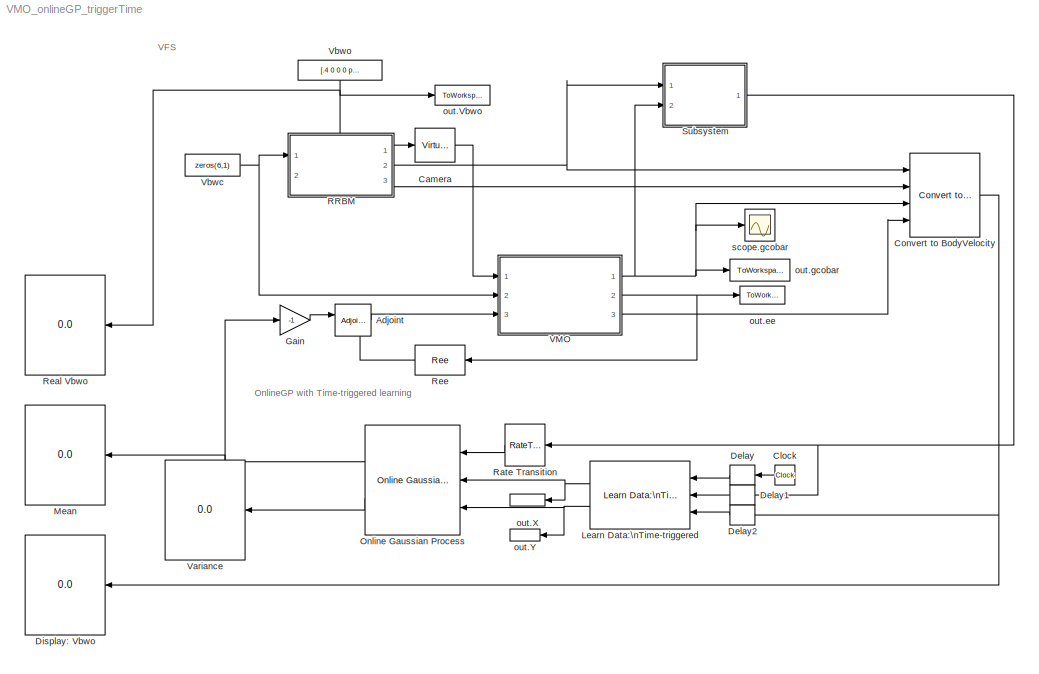
MODEL VMO_onlineGP_triggerTime
KIND model
BLOCK [Reference] Adjoint  REF=simlib_vpc_basic/Adjoint
  NameLocation = top
  Ports = [2, 1]
  RTWMemSecDataConstants = Inherit from model
  RTWMemSecDataInternal = Inherit from model
  RTWMemSecDataParameters = Inherit from model
  RTWMemSecFuncExecute = Inherit from model
  RTWMemSecFuncInitTerm = Inherit from model
  SID = 60
  SourceBlock = simlib_vpc_basic/Adjoint
  SourceProductName = VPC Library
  SourceType = Adjoint Matrix [V1]
  adjointtype = orientation
BLOCK [Reference] Camera  REF=simlib_vpc_basic/Virtual Camera
  NameLocation = top
  Ports = [1, 1]
  RTWMemSecDataConstants = Inherit from model
  RTWMemSecDataInternal = Inherit from model
  RTWMemSecDataParameters = Inherit from model
  RTWMemSecFuncExecute = Inherit from model
  RTWMemSecFuncInitTerm = Inherit from model
  SID = 44
  SourceBlock = simlib_vpc_basic/Virtual Camera
  SourceProductName = VPC Library
  SourceType = Virtual Camera model [V1]
  camtype = Pinhole
  lambda = lambda
  po = po
BLOCK [Clock] Clock
  NameLocation = top
  SID = 78
BLOCK [Reference] Convert to BodyVelocity  REF=simlib_vpc_coremath/Convert to BodyVelocity
  Ports = [4, 1]
  RTWMemSecDataConstants = Inherit from model
  RTWMemSecDataInternal = Inherit from model
  RTWMemSecDataParameters = Inherit from model
  RTWMemSecFuncExecute = Inherit from model
  RTWMemSecFuncInitTerm = Inherit from model
  SID = 103
  SourceBlock = simlib_vpc_coremath/Convert to BodyVelocity
  SourceProductName = VPC Library
  SourceType = Convert to Body Velocity [V1]
BLOCK [Delay] Delay
  DelayLength = 1
  InputPortMap = u0
  NameLocation = top
  Ports = [1, 1]
  SID = 105
BLOCK [Delay] Delay1
  DelayLength = 1
  InitialCondition = zeros(6,1)
  InputPortMap = u0
  NameLocation = top
  Ports = [1, 1]
  SID = 106
BLOCK [Delay] Delay2
  DelayLength = 1
  InitialCondition = zeros(6,1)
  InputPortMap = u0
  NameLocation = top
  Ports = [1, 1]
  SID = 108
BLOCK [Display] Display: Vbwo
  Decimation = 1
  Ports = [1]
  SID = 109
BLOCK [Gain] Gain
  Gain = -1
  SID = 61
BLOCK [Reference] Learn Data:\nTime-triggered  REF=simlib_vpc_gp/Learn Data:\nTime-triggered
  M = 10
  Ports = [3, 2]
  RTWMemSecDataConstants = Inherit from model
  RTWMemSecDataInternal = Inherit from model
  RTWMemSecDataParameters = Inherit from model
  RTWMemSecFuncExecute = Inherit from model
  RTWMemSecFuncInitTerm = Inherit from model
  SID = 113
  SourceBlock = simlib_vpc_gp/Learn Data:\nTime-triggered
  SourceProductName = VPC Library
  SourceType = Time-triggered Learning [V1]
  T = 1
  forget_type = oldest
  ts = 0.01
BLOCK [Display] Mean
  Decimation = 1
  Ports = [1]
  SID = 90
BLOCK [Reference] Online Gaussian Process  REF=simlib_vpc_gp/Online Gaussian Process
  Ports = [3, 2]
  RTWMemSecDataConstants = Inherit from model
  RTWMemSecDataInternal = Inherit from model
  RTWMemSecDataParameters = Inherit from model
  RTWMemSecFuncExecute = Inherit from model
  RTWMemSecFuncInitTerm = Inherit from model
  SID = 102
  SourceBlock = simlib_vpc_gp/Online Gaussian Process
  SourceProductName = VPC Library
  SourceType = Online Gaussian Process [V1]
  hyp = [5811173401.07743,21588555449944.6,1,8110042.13413100,7904.61094638263,7904.61094640294,0.200026025926779;60.7489924638542,524.808810512054,1,1.61563170712922,1.71239559901261,1.71239559901241,5.61320776710465e-12;1489.26961783243,49.4500876144320,1,0.324984946298690,0.226613543570055,0.226613543570214,1.82535781762732e-12;0.155449650516185,65.1816809298117,1,38.3822907611281,127.663031081991,127....<+248ch>
  hyp_source = internal
  kernel = Squared Exponential ARD
  sn = 1e-2.*ones(6,1)
  sn_source = internal
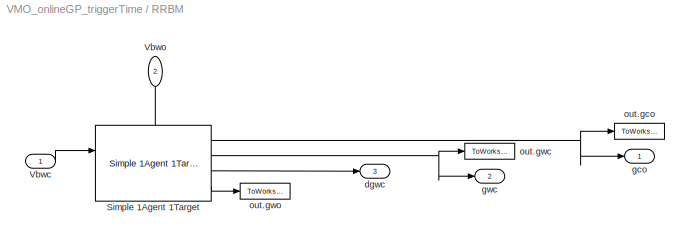
BLOCK [SubSystem] RRBM
  PortSchema = {\"entries\":[{\"content\":{\"sides\":[{\"content\":{\"connectorIds\":[\"In1\"]},\"type\":\"ConnectorPlacement.EquallySpacedRectSide\",\"uuid\":\"ce1006a6-ff18-4db7-ad69-3a60144a672f\"},{\"content\":{\"connectorIds\":[\"Out1\",\"Out2\",\"Out3\"],\"side\":\"RIGHT\"},\"type\":\"ConnectorPlacement.EquallySpacedRectSide\",\"uuid\":\"9f6b7cf2-eb23-4db0-862a-f9244538bf77\"},{\"content\":{\"connectorIds\...<+495ch>
  Ports = [2, 3]
  RequestExecContextInheritance = off
  SID = 8
BLOCK [Reference] RRBM/Simple 1Agent 1Target  REF=simlib_vpc_basic/Simple 1Agent 1Target
  Ports = [2, 4]
  RTWMemSecDataConstants = Inherit from model
  RTWMemSecDataInternal = Inherit from model
  RTWMemSecDataParameters = Inherit from model
  RTWMemSecFuncExecute = Inherit from model
  RTWMemSecFuncInitTerm = Inherit from model
  SID = 20
  SourceBlock = simlib_vpc_basic/Simple 1Agent 1Target
  SourceProductName = VPC Library
  SourceType = Simple 1Agent 1 Target block [V1]
  gwc0 = mergepose(rotx(-90),[0; -5; 0])
  gwo0 = mergepose(rotx(-90),[0.3; 0.1; 0.1])
  projectionAgent = on
  projectionTarget = on
  showdgwc = on
  showdgwo = off
  showgwc = on
  showgwo = on
BLOCK [Inport] RRBM/Vbwc
  SID = 10
BLOCK [Inport] RRBM/Vbwo
  NameLocation = left
  Port = 2
  SID = 9
BLOCK [Outport] RRBM/dgwc
  NameLocation = right
  Port = 3
  SID = 104
BLOCK [Outport] RRBM/gco
  NameLocation = right
  SID = 11
BLOCK [Outport] RRBM/gwc
  NameLocation = right
  Port = 2
  SID = 59
BLOCK [ToWorkspace] RRBM/out.gco
  FixptAsFi = on
  MaxDataPoints = inf
  NameLocation = right
  Ports = [1]
  SID = 69
  SampleTime = -1
  SaveFormat = Structure With Time
  VariableName = gco
BLOCK [ToWorkspace] RRBM/out.gwc
  FixptAsFi = on
  MaxDataPoints = inf
  NameLocation = right
  Ports = [1]
  SID = 33
  SampleTime = -1
  SaveFormat = Structure With Time
  VariableName = gwc
BLOCK [ToWorkspace] RRBM/out.gwo
  FixptAsFi = on
  MaxDataPoints = inf
  NameLocation = right
  Ports = [1]
  SID = 34
  SampleTime = -1
  SaveFormat = Structure With Time
  VariableName = gwo
BLOCK [RateTransition] Rate Transition
  NameLocation = top
  OutPortSampleTime = 0.01
  SID = 100
BLOCK [Display] Real Vbwo
  Decimation = 1
  Ports = [1]
  SID = 111
BLOCK [Reference] Ree  REF=simlib_vpc_coremath/Ree
  NameLocation = top
  Ports = [1, 1]
  RTWMemSecDataConstants = Inherit from model
  RTWMemSecDataInternal = Inherit from model
  RTWMemSecDataParameters = Inherit from model
  RTWMemSecFuncExecute = Inherit from model
  RTWMemSecFuncInitTerm = Inherit from model
  SID = 65
  SourceBlock = simlib_vpc_coremath/Ree
  SourceProductName = VPC Library
  SourceType = Rotation Estimation Error [V1]
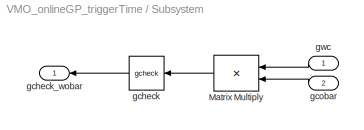
BLOCK [SubSystem] Subsystem
  Ports = [2, 1]
  RequestExecContextInheritance = off
  SID = 70
BLOCK [Product] Subsystem/Matrix Multiply
  Multiplication = Matrix(*)
  NameLocation = top
  Ports = [2, 1]
  SID = 66
BLOCK [Reference] Subsystem/gcheck  REF=simlib_vpc_coremath/gcheck
  NameLocation = top
  Ports = [1, 1]
  RTWMemSecDataConstants = Inherit from model
  RTWMemSecDataInternal = Inherit from model
  RTWMemSecDataParameters = Inherit from model
  RTWMemSecFuncExecute = Inherit from model
  RTWMemSecFuncInitTerm = Inherit from model
  SID = 47
  SourceBlock = simlib_vpc_coremath/gcheck
  SourceProductName = VPC Library
  SourceType = Check Transform [V1]
BLOCK [Outport] Subsystem/gcheck_wobar
  SID = 73
BLOCK [Inport] Subsystem/gcobar
  NameLocation = right
  Port = 2
  SID = 72
BLOCK [Inport] Subsystem/gwc
  NameLocation = right
  SID = 71
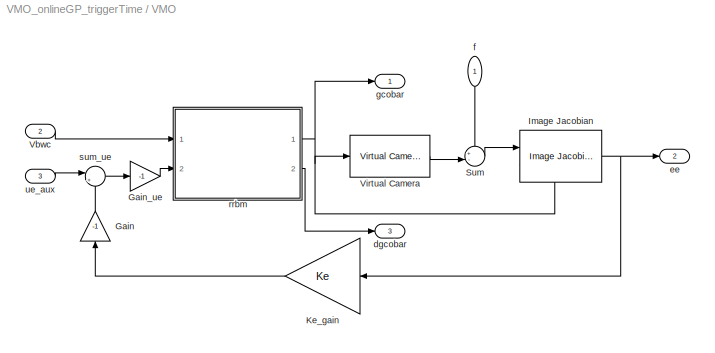
BLOCK [SubSystem] VMO
  MinAlgLoopOccurrences = on
  Ports = [3, 3]
  RTWSystemCode = Reusable function
  RequestExecContextInheritance = off
  SID = 43
BLOCK [Gain] VMO/Gain
  Gain = -1
  NameLocation = right
  SID = 43:206
BLOCK [Gain] VMO/Gain_ue
  Gain = -1
  SID = 43:246
BLOCK [Reference] VMO/Image Jacobian  REF=simlib_vpc_basic/Image Jacobian
  NameLocation = top
  Ports = [2, 1]
  RTWMemSecDataConstants = Inherit from model
  RTWMemSecDataInternal = Inherit from model
  RTWMemSecDataParameters = Inherit from model
  RTWMemSecFuncExecute = Inherit from model
  RTWMemSecFuncInitTerm = Inherit from model
  SID = 43:147
  SourceBlock = simlib_vpc_basic/Image Jacobian
  SourceProductName = VPC Library
  SourceType = Image Jacobian [V1]
  lambda = lambda
  po = fo
BLOCK [Gain] VMO/Ke_gain
  Gain = Ke
  Multiplication = Matrix(K*u) (u vector)
  SID = 43:263
BLOCK [Sum] VMO/Sum
  Inputs = +-|
  Ports = [2, 1]
  SID = 43:150
BLOCK [Inport] VMO/Vbwc
  Port = 2
  SID = 43:144
BLOCK [Reference] VMO/Virtual Camera  REF=simlib_vpc_basic/Virtual Camera
  Ports = [1, 1]
  RTWMemSecDataConstants = Inherit from model
  RTWMemSecDataInternal = Inherit from model
  RTWMemSecDataParameters = Inherit from model
  RTWMemSecFuncExecute = Inherit from model
  RTWMemSecFuncInitTerm = Inherit from model
  SID = 43:151
  SourceBlock = simlib_vpc_basic/Virtual Camera
  SourceProductName = VPC Library
  SourceType = Virtual Camera model [V1]
  camtype = Pinhole
  lambda = lambda
  po = fo
BLOCK [Outport] VMO/dgcobar
  Port = 3
  SID = 43:276
BLOCK [Outport] VMO/ee
  Port = 2
  SID = 43:275
BLOCK [Inport] VMO/f
  NameLocation = left
  SID = 43:143
BLOCK [Outport] VMO/gcobar
  SID = 43:153
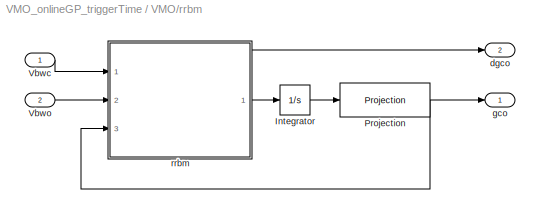
BLOCK [SubSystem] VMO/rrbm
  MinAlgLoopOccurrences = on
  Ports = [2, 2]
  RTWSystemCode = Reusable function
  RequestExecContextInheritance = off
  SID = 43:149
BLOCK [Integrator] VMO/rrbm/Integrator
  InitialCondition = gco0
  Ports = [1, 1]
  SID = 43:149:78
BLOCK [Reference] VMO/rrbm/Projection  REF=simlib_vpc_basic/Projection
  Ports = [1, 1]
  RTWMemSecDataConstants = Inherit from model
  RTWMemSecDataInternal = Inherit from model
  RTWMemSecDataParameters = Inherit from model
  RTWMemSecFuncExecute = Inherit from model
  RTWMemSecFuncInitTerm = Inherit from model
  SID = 43:149:82
  SourceBlock = simlib_vpc_basic/Projection
  SourceProductName = VPC Library
  SourceType = Rotation Projection [V1]
  inputtype = pose
  projectiontype = averaging
BLOCK [Inport] VMO/rrbm/Vbwc
  SID = 43:149:47
BLOCK [Inport] VMO/rrbm/Vbwo
  Port = 2
  SID = 43:149:49
BLOCK [Outport] VMO/rrbm/dgco
  Port = 2
  SID = 43:149:89
BLOCK [Outport] VMO/rrbm/gco
  SID = 43:149:48
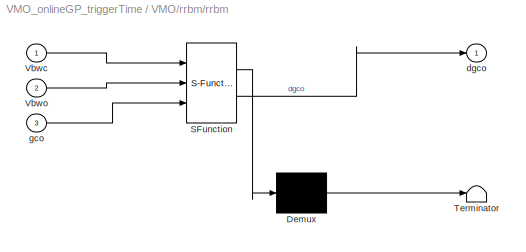
BLOCK [SubSystem] VMO/rrbm/rrbm
  ErrorFcn = Stateflow.Translate.translate
  PermitHierarchicalResolution = ExplicitOnly
  Ports = [3, 1]
  RequestExecContextInheritance = off
  SFBlockType = MATLAB Function
  SID = 43:149:77
  TreatAsAtomicUnit = on
BLOCK [Demux] VMO/rrbm/rrbm/ Demux 
  Outputs = 1
  Ports = [1, 1]
  SID = 43:149:77::28
BLOCK [S-Function] VMO/rrbm/rrbm/ SFunction 
  EnableBusSupport = on
  FunctionName = sf_sfun
  PortCounts = [3 2]
  Ports = [3, 2]
  SFcnIsStateOwnerBlock = off
  SFunctionDeploymentMode = off
  SID = 43:149:77::27
  Tag = Stateflow S-Function 7
BLOCK [Terminator] VMO/rrbm/rrbm/ Terminator 
  SID = 43:149:77::29
BLOCK [Inport] VMO/rrbm/rrbm/Vbwc
  SID = 43:149:77::22
BLOCK [Inport] VMO/rrbm/rrbm/Vbwo
  Port = 2
  SID = 43:149:77::1
BLOCK [Outport] VMO/rrbm/rrbm/dgco
  SID = 43:149:77::5
BLOCK [Inport] VMO/rrbm/rrbm/gco
  Port = 3
  SID = 43:149:77::23
BLOCK [Sum] VMO/sum_ue
  Inputs = |++
  Ports = [2, 1]
  SID = 43:274
BLOCK [Inport] VMO/ue_aux
  Port = 3
  SID = 43:273
BLOCK [Display] Variance
  Decimation = 1
  Ports = [1]
  SID = 99
BLOCK [Constant] Vbwc
  SID = 16
  Value = zeros(6,1)
BLOCK [Constant] Vbwo
  NameLocation = right
  SID = 18
  Value = [.4 0 0 0 pi/6 0]
BLOCK [ToWorkspace] out.Vbwo
  FixptAsFi = on
  MaxDataPoints = inf
  NameLocation = right
  Ports = [1]
  SID = 45
  SampleTime = -1
  SaveFormat = Structure With Time
  VariableName = Vbwo
BLOCK [ToWorkspace] out.X
  FixptAsFi = on
  MaxDataPoints = inf
  NameLocation = left
  Ports = [1]
  SID = 91
  SampleTime = -1
  SaveFormat = Structure With Time
  VariableName = X
BLOCK [ToWorkspace] out.Y
  FixptAsFi = on
  MaxDataPoints = inf
  NameLocation = left
  Ports = [1]
  SID = 98
  SampleTime = -1
  SaveFormat = Structure With Time
  VariableName = Y
BLOCK [ToWorkspace] out.ee
  FixptAsFi = on
  MaxDataPoints = inf
  NameLocation = right
  Ports = [1]
  SID = 36
  SampleTime = -1
  SaveFormat = Structure With Time
  VariableName = ee
BLOCK [ToWorkspace] out.gcobar
  FixptAsFi = on
  MaxDataPoints = inf
  NameLocation = right
  Ports = [1]
  SID = 31
  SampleTime = -1
  SaveFormat = Structure With Time
  VariableName = gcobar
BLOCK [Scope] scope.gcobar
  Floating = off
  NumInputPorts = 1
  Ports = [1]
  SID = 38
  ScopeSpecificationString = Simulink.scopes.TimeScopeBlockCfg('CurrentConfiguration', extmgr.ConfigurationSet(extmgr.Configuration('Core','General UI',true),extmgr.Configuration('Core','Source UI',true),extmgr.Configuration('Sources','WiredSimulink',true),extmgr.Configuration('Visuals','Time Domain',true,'SerializedDisplays',{struct('MinYLimReal','-44571.05179','MaxYLimReal','401135.54571','YLabelReal','','MinYLimMag','   0....<+1871ch>
ANNOTATION (root): \n \n \n \n \n \n \n \n $\\check{\\bar{g}}_{wo}$ \n \n \n \n
ANNOTATION (root): \n \n \n \n \n \n \n \n Note: \n \n \n If \n $\\dot{\\bar{g}}_{co}$ \n is shown at the output of the VMO, there will be an algebraic loop that Simulink cannot resolve. This is due to how atomic subsystems work. \n \n \n \n \n \n To make this work, the atomic subsystem property of the VMO Library block has been disabled. However, this means that the VMO block in this Simulink file is unique and doe...<+172ch>
ANNOTATION (root): OnlineGP with Time-triggered learning
ANNOTATION (root): VFS\n
ANNOTATION Subsystem: \n \n \n \n \n \n \n \n $\\bar{g}_{wo}$ \n \n \n \n
ANNOTATION Subsystem: \n \n \n \n \n \n \n \n $\\check{\\bar{g}}_{wo}$ \n \n \n \n
LINE Adjoint:1 -> VMO:3
LINE Camera:1 -> VMO:1
LINE Clock:1 -> Delay:1
NET Convert to BodyVelocity:1 -> Delay2:1, Display: Vbwo:1
LINE Delay1:1 -> Learn Data:\nTime-triggered:2
LINE Delay2:1 -> Learn Data:\nTime-triggered:3
LINE Delay:1 -> Learn Data:\nTime-triggered:1
LINE Gain:1 -> Adjoint:1
NET Learn Data:\nTime-triggered:1 -> Online Gaussian Process:2, out.X:1
NET Learn Data:\nTime-triggered:2 -> Online Gaussian Process:3, out.Y:1
NET Online Gaussian Process:1 -> Gain:1, Mean:1
LINE Online Gaussian Process:2 -> Variance:1
NET RRBM/Simple 1Agent 1Target:1 -> RRBM/gco:1, RRBM/out.gco:1
NET RRBM/Simple 1Agent 1Target:2 -> RRBM/gwc:1, RRBM/out.gwc:1
LINE RRBM/Simple 1Agent 1Target:3 -> RRBM/dgwc:1
LINE RRBM/Simple 1Agent 1Target:4 -> RRBM/out.gwo:1
LINE RRBM/Vbwc:1 -> RRBM/Simple 1Agent 1Target:1
LINE RRBM/Vbwo:1 -> RRBM/Simple 1Agent 1Target:2
LINE RRBM:1 -> Camera:1
NET RRBM:2 -> Convert to BodyVelocity:1, Subsystem:1
LINE RRBM:3 -> Convert to BodyVelocity:2
LINE Rate Transition:1 -> Online Gaussian Process:1
LINE Ree:1 -> Adjoint:2
LINE Subsystem/Matrix Multiply:1 -> Subsystem/gcheck:1
LINE Subsystem/gcheck:1 -> Subsystem/gcheck_wobar:1
LINE Subsystem/gcobar:1 -> Subsystem/Matrix Multiply:2
LINE Subsystem/gwc:1 -> Subsystem/Matrix Multiply:1
NET Subsystem:1 -> Delay1:1, Rate Transition:1
LINE VMO/Gain:1 -> VMO/sum_ue:2
LINE VMO/Gain_ue:1 -> VMO/rrbm:2
NET VMO/Image Jacobian:1 -> VMO/Ke_gain:1, VMO/ee:1
LINE VMO/Ke_gain:1 -> VMO/Gain:1
LINE VMO/Sum:1 -> VMO/Image Jacobian:1
LINE VMO/Vbwc:1 -> VMO/rrbm:1
LINE VMO/Virtual Camera:1 -> VMO/Sum:2
LINE VMO/f:1 -> VMO/Sum:1
LINE VMO/rrbm/Integrator:1 -> VMO/rrbm/Projection:1
NET VMO/rrbm/Projection:1 -> VMO/rrbm/gco:1, VMO/rrbm/rrbm:3
LINE VMO/rrbm/Vbwc:1 -> VMO/rrbm/rrbm:1
LINE VMO/rrbm/Vbwo:1 -> VMO/rrbm/rrbm:2
LINE VMO/rrbm/rrbm/ Demux :1 -> VMO/rrbm/rrbm/ Terminator :1
LINE VMO/rrbm/rrbm/ SFunction :1 -> VMO/rrbm/rrbm/ Demux :1
LINE VMO/rrbm/rrbm/ SFunction :2 -> VMO/rrbm/rrbm/dgco:1
LINE VMO/rrbm/rrbm/Vbwc:1 -> VMO/rrbm/rrbm/ SFunction :1
LINE VMO/rrbm/rrbm/Vbwo:1 -> VMO/rrbm/rrbm/ SFunction :2
LINE VMO/rrbm/rrbm/gco:1 -> VMO/rrbm/rrbm/ SFunction :3
NET VMO/rrbm/rrbm:1 -> VMO/rrbm/Integrator:1, VMO/rrbm/dgco:1
NET VMO/rrbm:1 -> VMO/Image Jacobian:2, VMO/Virtual Camera:1, VMO/gcobar:1
LINE VMO/rrbm:2 -> VMO/dgcobar:1
LINE VMO/sum_ue:1 -> VMO/Gain_ue:1
LINE VMO/ue_aux:1 -> VMO/sum_ue:1
NET VMO:1 -> Convert to BodyVelocity:3, Subsystem:2, out.gcobar:1, scope.gcobar:1
NET VMO:2 -> Ree:1, out.ee:1
LINE VMO:3 -> Convert to BodyVelocity:4
NET Vbwc:1 -> RRBM:1, VMO:2
NET Vbwo:1 -> RRBM:2, Real Vbwo:1, out.Vbwo:1
note: NET lines group one-source signal fan-out (src -> all destinations, sorted); 1:1 wires keep LINE
CHART VMO/rrbm/rrbm states=1 transitions=1
  STATE_LABEL 'eML_blk_kernel()'
